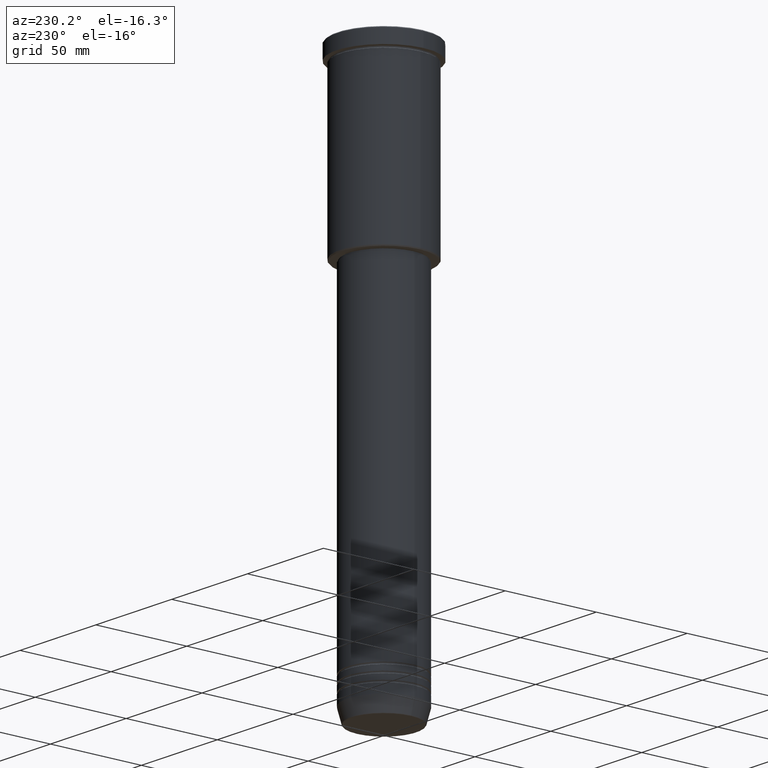
[diagram: clean part render]
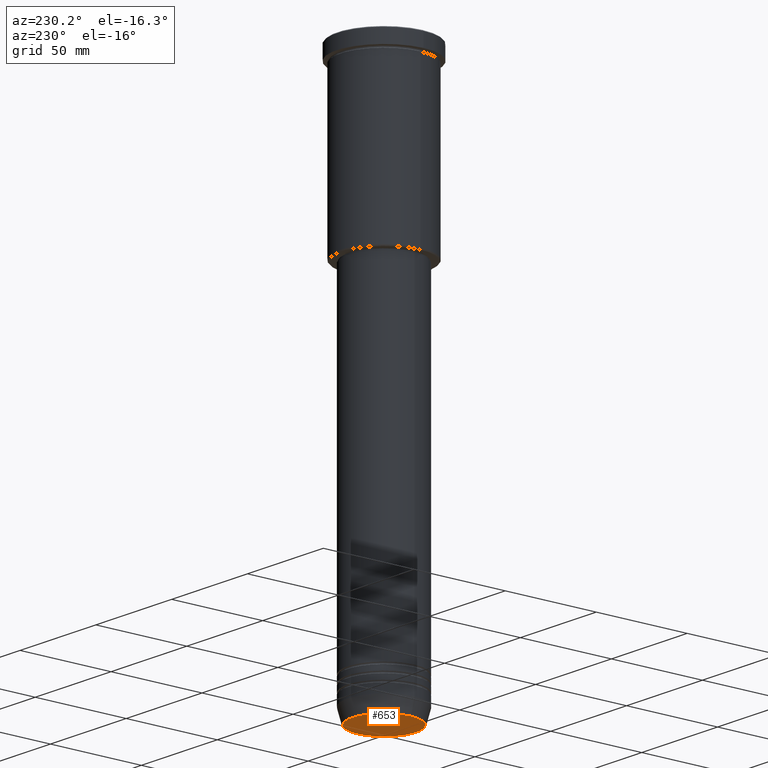
[diagram: same view with one face highlighted and labeled with its STEP entity id]
A machine part, auxiliary view. The second image highlights one B-rep face of the part: STEP entity #653.
In plain terms, the highlighted planar face has unit normal (0, -0, 1).
Its self-contained STEP definition (entity closure, byte-faithful):
#34 = DIRECTION ( 'NONE',  ( 1.000000000000000000, 0.000000000000000000, 0.000000000000000000 ) ) ;
#52 = VERTEX_POINT ( 'NONE', #185 ) ;
#71 = CIRCLE ( 'NONE', #723, 17.47274296656153680 ) ;
#185 = CARTESIAN_POINT ( 'NONE',  ( -17.47274296656153680, 2.169366823916868503E-15, -300.0000000000000000 ) ) ;
#268 = ORIENTED_EDGE ( 'NONE', *, *, #681, .T. ) ;
#279 = EDGE_CURVE ( 'NONE', #615, #52, #539, .T. ) ;
#280 = ORIENTED_EDGE ( 'NONE', *, *, #279, .T. ) ;
#315 = CARTESIAN_POINT ( 'NONE',  ( 17.47274296656153680, 0.000000000000000000, -300.0000000000000000 ) ) ;
#476 = AXIS2_PLACEMENT_3D ( 'NONE', #485, #743, #1097 ) ;
#485 = CARTESIAN_POINT ( 'NONE',  ( 0.000000000000000000, 0.000000000000000000, -300.0000000000000000 ) ) ;
#539 = CIRCLE ( 'NONE', #476, 17.47274296656153680 ) ;
#589 = DIRECTION ( 'NONE',  ( 1.000000000000000000, 0.000000000000000000, 0.000000000000000000 ) ) ;
#594 = DIRECTION ( 'NONE',  ( 0.000000000000000000, -0.000000000000000000, 1.000000000000000000 ) ) ;
#615 = VERTEX_POINT ( 'NONE', #315 ) ;
#653 = ADVANCED_FACE ( 'NONE', ( #1130 ), #1100, .F. ) ;
#672 = EDGE_LOOP ( 'NONE', ( #280, #268 ) ) ;
#681 = EDGE_CURVE ( 'NONE', #52, #615, #71, .T. ) ;
#723 = AXIS2_PLACEMENT_3D ( 'NONE', #1015, #764, #34 ) ;
#743 = DIRECTION ( 'NONE',  ( 0.000000000000000000, 0.000000000000000000, -1.000000000000000000 ) ) ;
#764 = DIRECTION ( 'NONE',  ( 0.000000000000000000, 0.000000000000000000, -1.000000000000000000 ) ) ;
#925 = AXIS2_PLACEMENT_3D ( 'NONE', #1032, #594, #589 ) ;
#1015 = CARTESIAN_POINT ( 'NONE',  ( 0.000000000000000000, 0.000000000000000000, -300.0000000000000000 ) ) ;
#1032 = CARTESIAN_POINT ( 'NONE',  ( 0.000000000000000000, 0.000000000000000000, -300.0000000000000000 ) ) ;
#1097 = DIRECTION ( 'NONE',  ( 1.000000000000000000, 0.000000000000000000, 0.000000000000000000 ) ) ;
#1100 = PLANE ( 'NONE',  #925 ) ;
#1130 = FACE_OUTER_BOUND ( 'NONE', #672, .T. ) ;